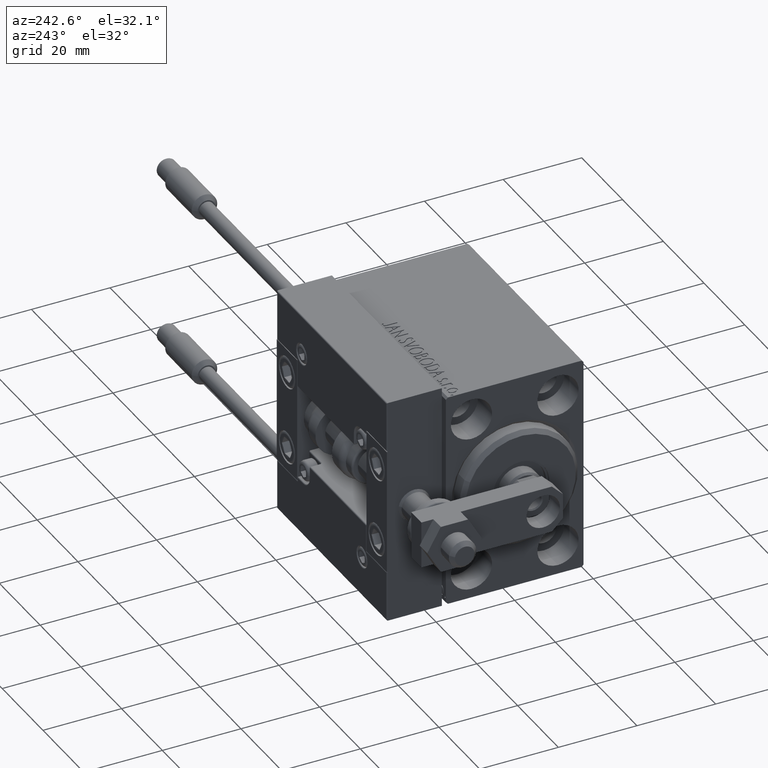
[diagram: clean part render]
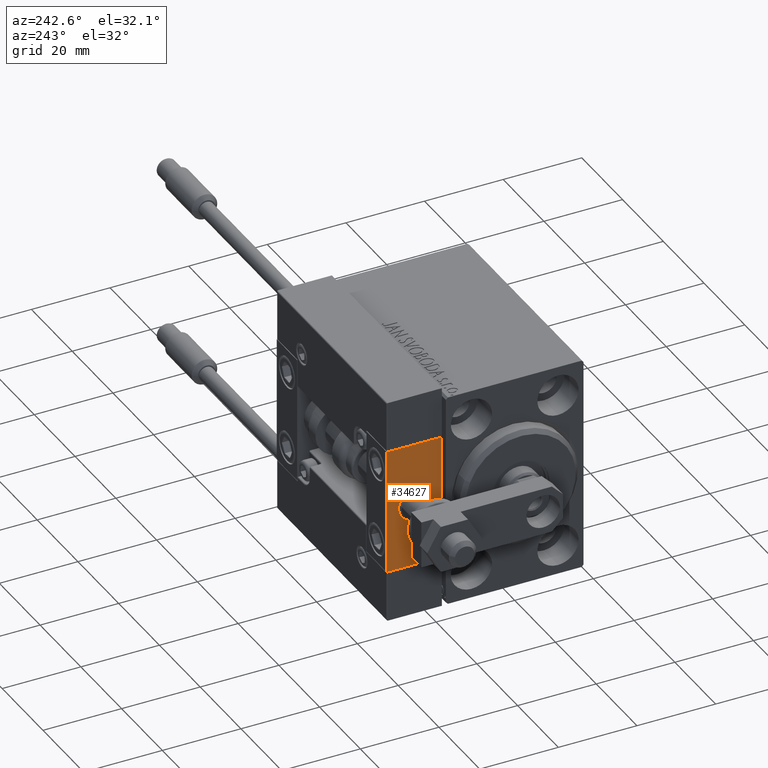
[diagram: same view with one face highlighted and labeled with its STEP entity id]
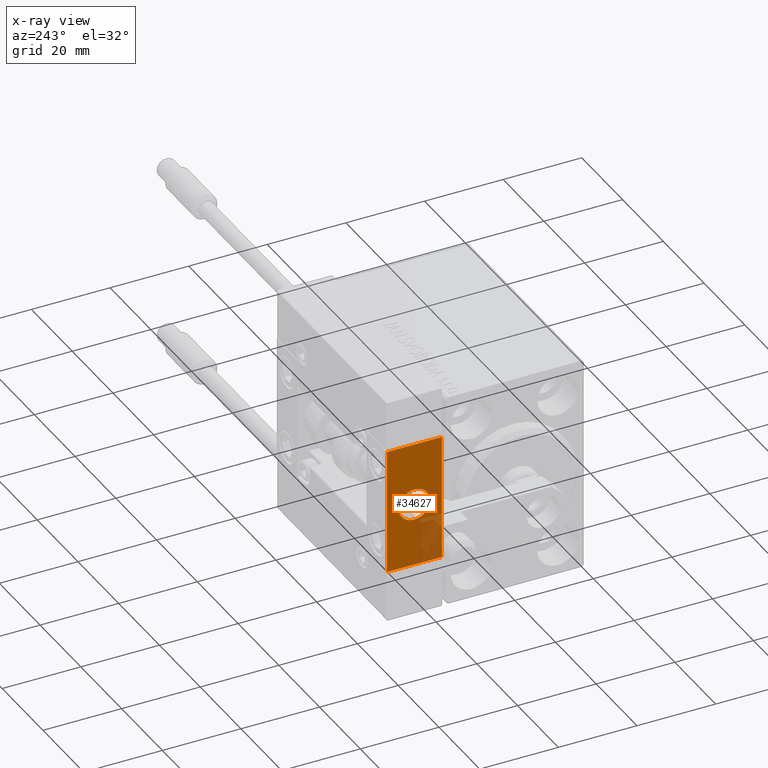
[diagram: x-ray of the same camera — body ghosted, the highlighted face saturated]
A machine part, auxiliary view. The second image highlights one B-rep face of the part: STEP entity #34627.
The next image is the same camera in x-ray: the body ghosted, the highlighted face saturated — about 17% of this face is hidden behind the body in this view.
In plain terms, the highlighted planar face has unit normal (1, 0, -0).
Its self-contained STEP definition (entity closure, byte-faithful):
#235 = DIRECTION ( 'NONE',  ( -0.000000000000000000, 0.000000000000000000, 1.000000000000000000 ) ) ;
#2243 = ORIENTED_EDGE ( 'NONE', *, *, #20992, .F. ) ;
#3187 = AXIS2_PLACEMENT_3D ( 'NONE', #42884, #39560, #235 ) ;
#3347 = CARTESIAN_POINT ( 'NONE',  ( 10.00000000000000000, 7.000000000000000000, 15.99999999999999289 ) ) ;
#4416 = ORIENTED_EDGE ( 'NONE', *, *, #41952, .T. ) ;
#4586 = ORIENTED_EDGE ( 'NONE', *, *, #5339, .T. ) ;
#5339 = EDGE_CURVE ( 'NONE', #14478, #9090, #44537, .T. ) ;
#6527 = CARTESIAN_POINT ( 'NONE',  ( 10.00000000000000000, 7.000000000000000000, -16.00000000000000711 ) ) ;
#7741 = VERTEX_POINT ( 'NONE', #32638 ) ;
#8513 = VECTOR ( 'NONE', #25946, 1000.000000000000000 ) ;
#9090 = VERTEX_POINT ( 'NONE', #32896 ) ;
#9538 = CARTESIAN_POINT ( 'NONE',  ( 10.00000000000000000, 7.000000000000000000, 15.99999999999999289 ) ) ;
#9985 = CARTESIAN_POINT ( 'NONE',  ( 10.00000000000000000, 0.000000000000000000, 0.000000000000000000 ) ) ;
#10168 = DIRECTION ( 'NONE',  ( 0.000000000000000000, 0.000000000000000000, -1.000000000000000000 ) ) ;
#10368 = CARTESIAN_POINT ( 'NONE',  ( 10.00000000000000000, -7.000000000000000000, -16.00000000000000711 ) ) ;
#10861 = EDGE_LOOP ( 'NONE', ( #44916, #42325, #2243, #4586 ) ) ;
#11359 = LINE ( 'NONE', #49442, #8513 ) ;
#13930 = CARTESIAN_POINT ( 'NONE',  ( 10.00000000000000000, 0.000000000000000000, 0.000000000000000000 ) ) ;
#14017 = LINE ( 'NONE', #38013, #33700 ) ;
#14478 = VERTEX_POINT ( 'NONE', #35621 ) ;
#15340 = EDGE_CURVE ( 'NONE', #9090, #20343, #14017, .T. ) ;
#15782 = ORIENTED_EDGE ( 'NONE', *, *, #39707, .T. ) ;
#17424 = CARTESIAN_POINT ( 'NONE',  ( 10.00000000000000000, 0.000000000000000000, 4.000000000000000000 ) ) ;
#17437 = DIRECTION ( 'NONE',  ( 0.000000000000000000, 0.000000000000000000, 1.000000000000000000 ) ) ;
#20343 = VERTEX_POINT ( 'NONE', #10368 ) ;
#20992 = EDGE_CURVE ( 'NONE', #14478, #44066, #42914, .T. ) ;
#23017 = DIRECTION ( 'NONE',  ( 0.000000000000000000, 0.000000000000000000, -1.000000000000000000 ) ) ;
#24609 = CIRCLE ( 'NONE', #34413, 4.000000000000000000 ) ;
#25679 = VECTOR ( 'NONE', #23017, 1000.000000000000000 ) ;
#25946 = DIRECTION ( 'NONE',  ( 0.000000000000000000, -1.000000000000000000, 0.000000000000000000 ) ) ;
#30398 = CIRCLE ( 'NONE', #36944, 4.000000000000000000 ) ;
#32638 = CARTESIAN_POINT ( 'NONE',  ( 10.00000000000000000, 4.898587196589412829E-16, -4.000000000000000000 ) ) ;
#32896 = CARTESIAN_POINT ( 'NONE',  ( 10.00000000000000000, -7.000000000000000000, 15.99999999999999289 ) ) ;
#33054 = DIRECTION ( 'NONE',  ( 0.000000000000000000, -1.000000000000000000, 0.000000000000000000 ) ) ;
#33700 = VECTOR ( 'NONE', #10168, 1000.000000000000000 ) ;
#34413 = AXIS2_PLACEMENT_3D ( 'NONE', #9985, #40661, #17437 ) ;
#34627 = ADVANCED_FACE ( 'NONE', ( #34976, #43134 ), #46726, .F. ) ;
#34976 = FACE_BOUND ( 'NONE', #38680, .T. ) ;
#35621 = CARTESIAN_POINT ( 'NONE',  ( 10.00000000000000000, 7.000000000000000000, 15.99999999999999289 ) ) ;
#36872 = VERTEX_POINT ( 'NONE', #17424 ) ;
#36944 = AXIS2_PLACEMENT_3D ( 'NONE', #13930, #42001, #49914 ) ;
#38013 = CARTESIAN_POINT ( 'NONE',  ( 10.00000000000000000, -7.000000000000000000, 15.99999999999999289 ) ) ;
#38680 = EDGE_LOOP ( 'NONE', ( #4416, #15782 ) ) ;
#39560 = DIRECTION ( 'NONE',  ( -1.000000000000000000, 0.000000000000000000, -0.000000000000000000 ) ) ;
#39707 = EDGE_CURVE ( 'NONE', #7741, #36872, #24609, .T. ) ;
#40046 = VECTOR ( 'NONE', #33054, 1000.000000000000000 ) ;
#40661 = DIRECTION ( 'NONE',  ( -1.000000000000000000, 0.000000000000000000, 0.000000000000000000 ) ) ;
#41952 = EDGE_CURVE ( 'NONE', #36872, #7741, #30398, .T. ) ;
#42001 = DIRECTION ( 'NONE',  ( -1.000000000000000000, 0.000000000000000000, 0.000000000000000000 ) ) ;
#42325 = ORIENTED_EDGE ( 'NONE', *, *, #49056, .F. ) ;
#42884 = CARTESIAN_POINT ( 'NONE',  ( 10.00000000000000000, 0.000000000000000000, 0.000000000000000000 ) ) ;
#42914 = LINE ( 'NONE', #3347, #25679 ) ;
#43134 = FACE_OUTER_BOUND ( 'NONE', #10861, .T. ) ;
#44066 = VERTEX_POINT ( 'NONE', #6527 ) ;
#44537 = LINE ( 'NONE', #9538, #40046 ) ;
#44916 = ORIENTED_EDGE ( 'NONE', *, *, #15340, .T. ) ;
#46726 = PLANE ( 'NONE',  #3187 ) ;
#49056 = EDGE_CURVE ( 'NONE', #44066, #20343, #11359, .T. ) ;
#49442 = CARTESIAN_POINT ( 'NONE',  ( 10.00000000000000000, 7.000000000000000000, -16.00000000000000711 ) ) ;
#49914 = DIRECTION ( 'NONE',  ( 0.000000000000000000, 0.000000000000000000, 1.000000000000000000 ) ) ;